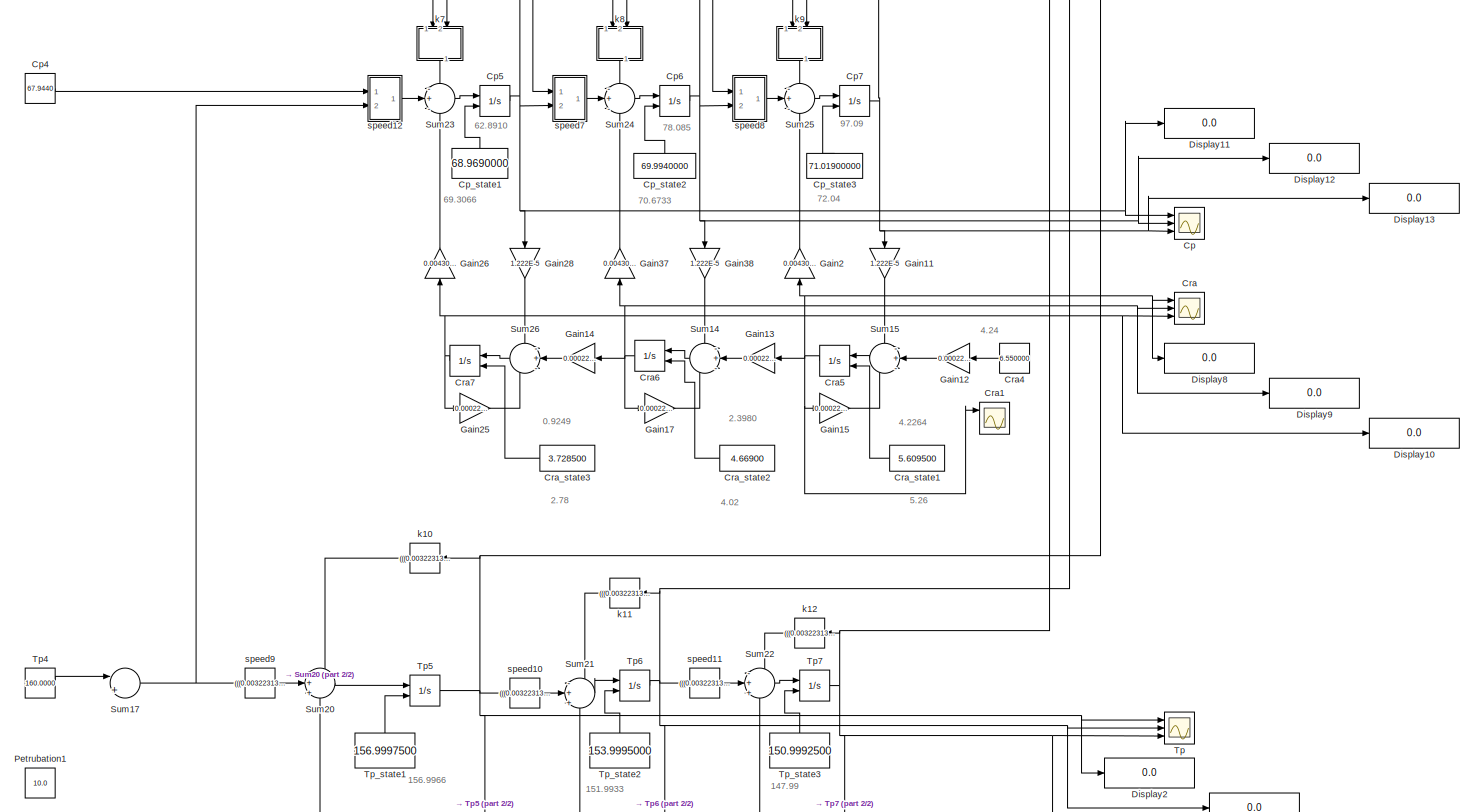
[diagram: root canvas - part 1/2, full width, middle band]
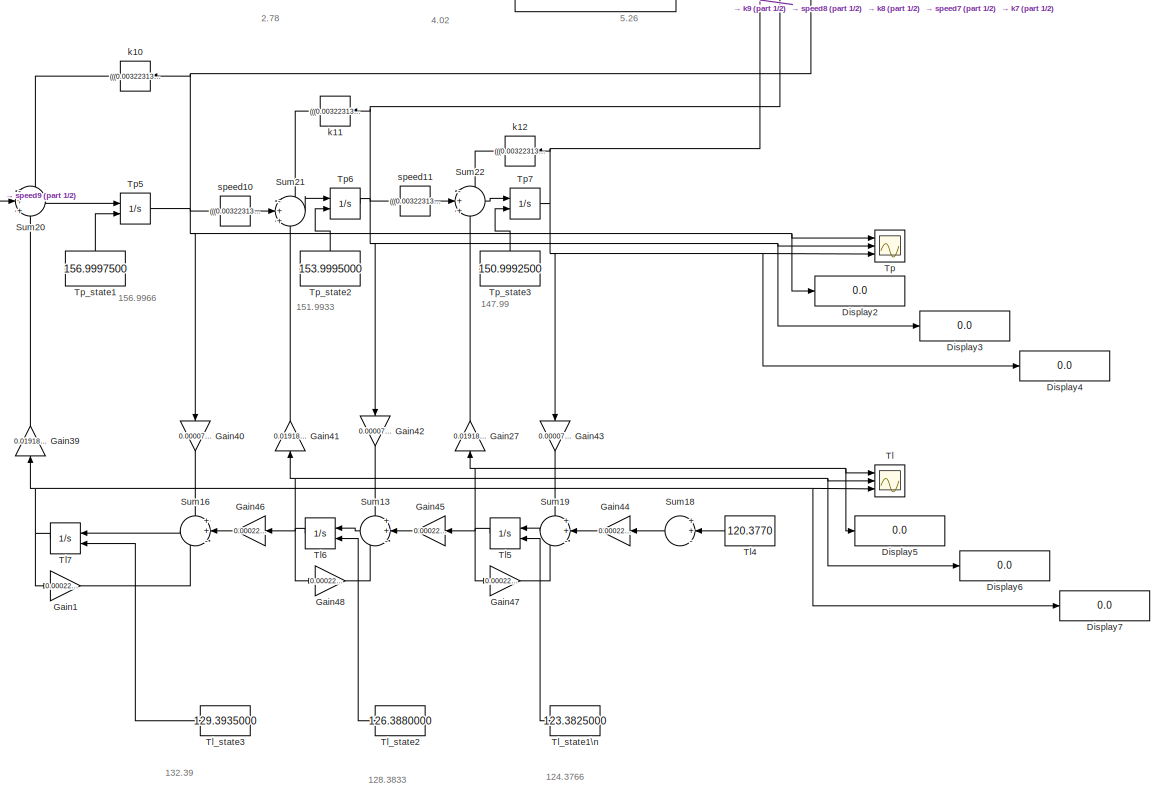
[diagram: root canvas - part 2/2, full width, bottom band]
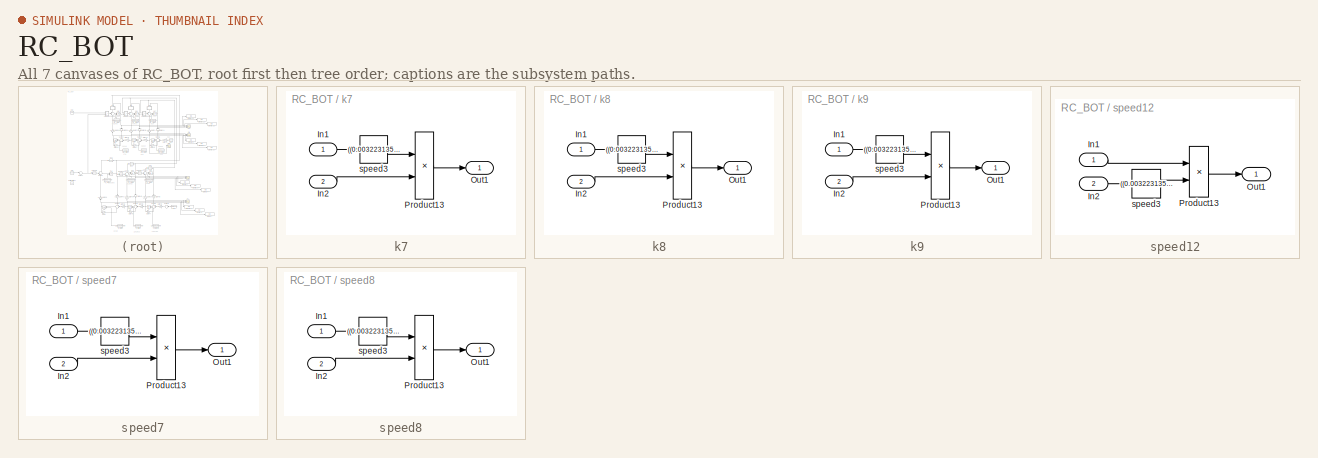
[diagram: thumbnail index - all 7 canvases of the model, root first then tree order]
MODEL RC_BOT
KIND model
BLOCK [Scope] Cp
  Floating = off
  NumInputPorts = 3
  Ports = [3]
  SID = 1
  ScopeSpecificationString = C++SS(StrPVP('Location','[5, 49, 1371, 737]'),StrPVP('Open','off'),StrPVP('TickLabels','on'),StrPVP('ZoomMode','xonly'),MxPVP('AxesTitles',53,'struct(''axes1'',''%<SignalLabel>'',''axes2'',''%<SignalLabel>'',''axes3'',''%<SignalLabel>'')'),MxPVP('ScopeGraphics',56,'struct(''FigureColor'',''[1 1 1]'',''AxesColor'',''[1 1 1]'',''AxesTickColor'',''[0 0 0]'',''LineColors'',''[0 0 0;1 0 1;0 1 1;1 0 0;0...<+445ch>
BLOCK [Constant] Cp4
  SID = 2
  Value = 67.9440
BLOCK [Integrator] Cp5
  InitialCondition = 69.3066
  InitialConditionSource = external
  Ports = [2, 1]
  SID = 3
BLOCK [Integrator] Cp6
  InitialCondition = 70.6733
  InitialConditionSource = external
  Ports = [2, 1]
  SID = 4
BLOCK [Integrator] Cp7
  InitialCondition = 72.04
  InitialConditionSource = external
  Ports = [2, 1]
  SID = 5
BLOCK [Constant] Cp_state1
  SID = 6
  Value = 68.9690000
BLOCK [Constant] Cp_state2
  SID = 7
  Value = 69.9940000
BLOCK [Constant] Cp_state3
  SID = 8
  Value = 71.01900000
BLOCK [Scope] Cra
  Floating = off
  NumInputPorts = 3
  Ports = [3]
  SID = 9
  ScopeSpecificationString = C++SS(StrPVP('Location','[5, 49, 1371, 737]'),StrPVP('Open','off'),StrPVP('TickLabels','on'),StrPVP('ZoomMode','xonly'),MxPVP('AxesTitles',53,'struct(''axes1'',''%<SignalLabel>'',''axes2'',''%<SignalLabel>'',''axes3'',''%<SignalLabel>'')'),MxPVP('ScopeGraphics',56,'struct(''FigureColor'',''[1 1 1]'',''AxesColor'',''[1 1 1]'',''AxesTickColor'',''[0 0 0]'',''LineColors'',''[0 0 0;1 0 1;0 1 1;1 0 0;0...<+458ch>
BLOCK [Scope] Cra1
  Floating = off
  NumInputPorts = 3
  Ports = [3]
  SID = 154
  ScopeSpecificationString = C++SS(StrPVP('Location','[5, 49, 1371, 737]'),StrPVP('Open','off'),StrPVP('TickLabels','on'),StrPVP('ZoomMode','xonly'),MxPVP('AxesTitles',53,'struct(''axes1'',''%<SignalLabel>'',''axes2'',''%<SignalLabel>'',''axes3'',''%<SignalLabel>'')'),MxPVP('ScopeGraphics',56,'struct(''FigureColor'',''[1 1 1]'',''AxesColor'',''[1 1 1]'',''AxesTickColor'',''[0 0 0]'',''LineColors'',''[0 0 0;1 0 1;0 1 1;1 0 0;0...<+459ch>
BLOCK [Constant] Cra4
  SID = 10
  Value = 6.550000
BLOCK [Integrator] Cra5
  InitialCondition = 5.26
  InitialConditionSource = external
  Ports = [2, 1]
  SID = 11
BLOCK [Integrator] Cra6
  InitialCondition = 4.02
  InitialConditionSource = external
  Ports = [2, 1]
  SID = 12
BLOCK [Integrator] Cra7
  InitialCondition = 2.78
  InitialConditionSource = external
  Ports = [2, 1]
  SID = 13
BLOCK [Constant] Cra_state1
  SID = 14
  Value = 5.609500
BLOCK [Constant] Cra_state2
  SID = 15
  Value = 4.66900
BLOCK [Constant] Cra_state3
  SID = 16
  Value = 3.728500
BLOCK [Display] Display10
  Decimation = 1
  Ports = [1]
  SID = 17
BLOCK [Display] Display11
  Decimation = 1
  Ports = [1]
  SID = 18
BLOCK [Display] Display12
  Decimation = 1
  Ports = [1]
  SID = 19
BLOCK [Display] Display13
  Decimation = 1
  Ports = [1]
  SID = 20
BLOCK [Display] Display2
  Decimation = 1
  Ports = [1]
  SID = 21
BLOCK [Display] Display3
  Decimation = 1
  Ports = [1]
  SID = 22
BLOCK [Display] Display4
  Decimation = 1
  Ports = [1]
  SID = 23
BLOCK [Display] Display5
  Decimation = 1
  Ports = [1]
  SID = 24
BLOCK [Display] Display6
  Decimation = 1
  Ports = [1]
  SID = 25
BLOCK [Display] Display7
  Decimation = 1
  Ports = [1]
  SID = 26
BLOCK [Display] Display8
  Decimation = 1
  Ports = [1]
  SID = 27
BLOCK [Display] Display9
  Decimation = 1
  Ports = [1]
  SID = 28
BLOCK [Gain] Gain1
  Gain = 0.0002291314/0.5+0.0000777
  OutDataTypeStr = Inherit: Inherit via internal rule
  ParamDataTypeStr = Inherit: Inherit via internal rule
  SID = 29
  SaturateOnIntegerOverflow = off
BLOCK [Gain] Gain11
  Gain = 1.222E-5
  OutDataTypeStr = Inherit: Inherit via internal rule
  ParamDataTypeStr = Inherit: Inherit via internal rule
  SID = 30
  SaturateOnIntegerOverflow = off
BLOCK [Gain] Gain12
  Gain = 0.0002291314/0.5
  OutDataTypeStr = Inherit: Inherit via internal rule
  ParamDataTypeStr = Inherit: Inherit via internal rule
  SID = 31
  SaturateOnIntegerOverflow = off
BLOCK [Gain] Gain13
  Gain = 0.0002291314/0.5
  OutDataTypeStr = Inherit: Inherit via internal rule
  ParamDataTypeStr = Inherit: Inherit via internal rule
  SID = 32
  SaturateOnIntegerOverflow = off
BLOCK [Gain] Gain14
  Gain = 0.0002291314/0.5
  OutDataTypeStr = Inherit: Inherit via internal rule
  ParamDataTypeStr = Inherit: Inherit via internal rule
  SID = 33
  SaturateOnIntegerOverflow = off
BLOCK [Gain] Gain15
  Gain = 0.0002291314/0.5-(1.222E-5)*10^(-9)
  OutDataTypeStr = Inherit: Inherit via internal rule
  ParamDataTypeStr = Inherit: Inherit via internal rule
  SID = 34
  SaturateOnIntegerOverflow = off
BLOCK [Gain] Gain17
  Gain = 0.0002291314/0.5-(1.222E-5)*10^(-9)
  OutDataTypeStr = Inherit: Inherit via internal rule
  ParamDataTypeStr = Inherit: Inherit via internal rule
  SID = 35
  SaturateOnIntegerOverflow = off
BLOCK [Gain] Gain2
  Gain = 0.004302*10^(-9)
  OutDataTypeStr = Inherit: Inherit via internal rule
  ParamDataTypeStr = Inherit: Inherit via internal rule
  SID = 36
  SaturateOnIntegerOverflow = off
BLOCK [Gain] Gain25
  Gain = 0.0002291314/0.5-(1.222E-5)*10^(-9)
  OutDataTypeStr = Inherit: Inherit via internal rule
  ParamDataTypeStr = Inherit: Inherit via internal rule
  SID = 37
  SaturateOnIntegerOverflow = off
BLOCK [Gain] Gain26
  Gain = 0.004302*10^(-9)
  OutDataTypeStr = Inherit: Inherit via internal rule
  ParamDataTypeStr = Inherit: Inherit via internal rule
  SID = 38
  SaturateOnIntegerOverflow = off
BLOCK [Gain] Gain27
  Gain = 0.0191806
  OutDataTypeStr = Inherit: Inherit via internal rule
  ParamDataTypeStr = Inherit: Inherit via internal rule
  SID = 39
  SaturateOnIntegerOverflow = off
BLOCK [Gain] Gain28
  Gain = 1.222E-5
  OutDataTypeStr = Inherit: Inherit via internal rule
  ParamDataTypeStr = Inherit: Inherit via internal rule
  SID = 40
  SaturateOnIntegerOverflow = off
BLOCK [Gain] Gain37
  Gain = 0.004302*10^(-9)
  OutDataTypeStr = Inherit: Inherit via internal rule
  ParamDataTypeStr = Inherit: Inherit via internal rule
  SID = 41
  SaturateOnIntegerOverflow = off
BLOCK [Gain] Gain38
  Gain = 1.222E-5
  OutDataTypeStr = Inherit: Inherit via internal rule
  ParamDataTypeStr = Inherit: Inherit via internal rule
  SID = 42
  SaturateOnIntegerOverflow = off
BLOCK [Gain] Gain39
  Gain = 0.0191806
  OutDataTypeStr = Inherit: Inherit via internal rule
  ParamDataTypeStr = Inherit: Inherit via internal rule
  SID = 43
  SaturateOnIntegerOverflow = off
BLOCK [Gain] Gain40
  Gain = 0.0000777
  OutDataTypeStr = Inherit: Inherit via internal rule
  ParamDataTypeStr = Inherit: Inherit via internal rule
  SID = 44
  SaturateOnIntegerOverflow = off
BLOCK [Gain] Gain41
  Gain = 0.0191806
  OutDataTypeStr = Inherit: Inherit via internal rule
  ParamDataTypeStr = Inherit: Inherit via internal rule
  SID = 45
  SaturateOnIntegerOverflow = off
BLOCK [Gain] Gain42
  Gain = 0.0000777
  OutDataTypeStr = Inherit: Inherit via internal rule
  ParamDataTypeStr = Inherit: Inherit via internal rule
  SID = 46
  SaturateOnIntegerOverflow = off
BLOCK [Gain] Gain43
  Gain = 0.0000777
  OutDataTypeStr = Inherit: Inherit via internal rule
  ParamDataTypeStr = Inherit: Inherit via internal rule
  SID = 47
  SaturateOnIntegerOverflow = off
BLOCK [Gain] Gain44
  Gain = 0.0002291314/0.5
  OutDataTypeStr = Inherit: Inherit via internal rule
  ParamDataTypeStr = Inherit: Inherit via internal rule
  SID = 48
  SaturateOnIntegerOverflow = off
BLOCK [Gain] Gain45
  Gain = 0.0002291314/0.5
  OutDataTypeStr = Inherit: Inherit via internal rule
  ParamDataTypeStr = Inherit: Inherit via internal rule
  SID = 49
  SaturateOnIntegerOverflow = off
BLOCK [Gain] Gain46
  Gain = 0.0002291314/0.5
  OutDataTypeStr = Inherit: Inherit via internal rule
  ParamDataTypeStr = Inherit: Inherit via internal rule
  SID = 50
  SaturateOnIntegerOverflow = off
BLOCK [Gain] Gain47
  Gain = 0.0002291314/0.5+0.0000777
  OutDataTypeStr = Inherit: Inherit via internal rule
  ParamDataTypeStr = Inherit: Inherit via internal rule
  SID = 51
  SaturateOnIntegerOverflow = off
BLOCK [Gain] Gain48
  Gain = 0.0002291314/0.5+0.0000777
  OutDataTypeStr = Inherit: Inherit via internal rule
  ParamDataTypeStr = Inherit: Inherit via internal rule
  SID = 52
  SaturateOnIntegerOverflow = off
BLOCK [Constant] Petrubation1
  SID = 53
  Value = 10.0
BLOCK [Sum] Sum13
  IconShape = round
  InputSameDT = off
  Inputs = ++-
  OutDataTypeStr = Inherit: Inherit via internal rule
  Ports = [3, 1]
  SID = 54
  SaturateOnIntegerOverflow = off
BLOCK [Sum] Sum14
  IconShape = round
  InputSameDT = off
  Inputs = -+-
  OutDataTypeStr = Inherit: Inherit via internal rule
  Ports = [3, 1]
  SID = 55
  SaturateOnIntegerOverflow = off
BLOCK [Sum] Sum15
  IconShape = round
  InputSameDT = off
  Inputs = -+-
  OutDataTypeStr = Inherit: Inherit via internal rule
  Ports = [3, 1]
  SID = 56
  SaturateOnIntegerOverflow = off
BLOCK [Sum] Sum16
  IconShape = round
  InputSameDT = off
  Inputs = ++-
  OutDataTypeStr = Inherit: Inherit via internal rule
  Ports = [3, 1]
  SID = 57
  SaturateOnIntegerOverflow = off
BLOCK [Sum] Sum17
  IconShape = round
  InputSameDT = off
  Inputs = |++
  OutDataTypeStr = Inherit: Inherit via internal rule
  Ports = [2, 1]
  SID = 58
  SaturateOnIntegerOverflow = off
BLOCK [Sum] Sum18
  IconShape = round
  InputSameDT = off
  Inputs = ++-
  OutDataTypeStr = Inherit: Inherit via internal rule
  Ports = [3, 1]
  SID = 59
  SaturateOnIntegerOverflow = off
BLOCK [Sum] Sum19
  IconShape = round
  InputSameDT = off
  Inputs = ++-
  OutDataTypeStr = Inherit: Inherit via internal rule
  Ports = [3, 1]
  SID = 60
  SaturateOnIntegerOverflow = off
BLOCK [Sum] Sum20
  IconShape = round
  InputSameDT = off
  Inputs = -++
  OutDataTypeStr = Inherit: Inherit via internal rule
  Ports = [3, 1]
  SID = 61
  SaturateOnIntegerOverflow = off
BLOCK [Sum] Sum21
  IconShape = round
  InputSameDT = off
  Inputs = -++
  OutDataTypeStr = Inherit: Inherit via internal rule
  Ports = [3, 1]
  SID = 62
  SaturateOnIntegerOverflow = off
BLOCK [Sum] Sum22
  IconShape = round
  InputSameDT = off
  Inputs = -++
  OutDataTypeStr = Inherit: Inherit via internal rule
  Ports = [3, 1]
  SID = 63
  SaturateOnIntegerOverflow = off
BLOCK [Sum] Sum23
  IconShape = round
  InputSameDT = off
  Inputs = -+-
  OutDataTypeStr = Inherit: Inherit via internal rule
  Ports = [3, 1]
  SID = 64
  SaturateOnIntegerOverflow = off
BLOCK [Sum] Sum24
  IconShape = round
  InputSameDT = off
  Inputs = -+-
  OutDataTypeStr = Inherit: Inherit via internal rule
  Ports = [3, 1]
  SID = 65
  SaturateOnIntegerOverflow = off
BLOCK [Sum] Sum25
  IconShape = round
  InputSameDT = off
  Inputs = -+-
  OutDataTypeStr = Inherit: Inherit via internal rule
  Ports = [3, 1]
  SID = 66
  SaturateOnIntegerOverflow = off
BLOCK [Sum] Sum26
  IconShape = round
  InputSameDT = off
  Inputs = -+-
  OutDataTypeStr = Inherit: Inherit via internal rule
  Ports = [3, 1]
  SID = 67
  SaturateOnIntegerOverflow = off
BLOCK [Scope] Tl
  Floating = off
  NumInputPorts = 3
  Ports = [3]
  SID = 68
  ScopeSpecificationString = C++SS(StrPVP('Location','[5, 49, 1371, 737]'),StrPVP('Open','off'),StrPVP('TickLabels','on'),StrPVP('ZoomMode','xonly'),MxPVP('AxesTitles',53,'struct(''axes1'',''%<SignalLabel>'',''axes2'',''%<SignalLabel>'',''axes3'',''%<SignalLabel>'')'),MxPVP('ScopeGraphics',56,'struct(''FigureColor'',''[1 1 1]'',''AxesColor'',''[1 1 1]'',''AxesTickColor'',''[0 0 0]'',''LineColors'',''[0 0 0;1 0 1;0 1 1;1 0 0;0...<+471ch>
BLOCK [Constant] Tl4
  SID = 69
  Value = 120.3770
BLOCK [Integrator] Tl5
  InitialCondition = 124.3766
  InitialConditionSource = external
  Ports = [2, 1]
  SID = 70
BLOCK [Integrator] Tl6
  InitialCondition = 128.3833
  InitialConditionSource = external
  Ports = [2, 1]
  SID = 71
BLOCK [Integrator] Tl7
  InitialCondition = 132.39
  InitialConditionSource = external
  Ports = [2, 1]
  SID = 72
BLOCK [Constant] Tl_state1\n
  SID = 73
  Value = 123.3825000
BLOCK [Constant] Tl_state2
  SID = 74
  Value = 126.3880000
BLOCK [Constant] Tl_state3
  SID = 75
  Value = 129.3935000
BLOCK [Scope] Tp
  Floating = off
  NumInputPorts = 3
  Ports = [3]
  SID = 76
  ScopeSpecificationString = C++SS(StrPVP('Location','[5, 49, 1371, 737]'),StrPVP('Open','off'),StrPVP('TickLabels','on'),StrPVP('ZoomMode','xonly'),MxPVP('AxesTitles',53,'struct(''axes1'',''%<SignalLabel>'',''axes2'',''%<SignalLabel>'',''axes3'',''%<SignalLabel>'')'),MxPVP('ScopeGraphics',56,'struct(''FigureColor'',''[1 1 1]'',''AxesColor'',''[1 1 1]'',''AxesTickColor'',''[0 0 0]'',''LineColors'',''[0 0 0;1 0 1;0 1 1;1 0 0;0...<+463ch>
BLOCK [Constant] Tp4
  SID = 77
  Value = 160.0000
BLOCK [Integrator] Tp5
  InitialCondition = 156.9966
  InitialConditionSource = external
  Ports = [2, 1]
  SID = 78
BLOCK [Integrator] Tp6
  InitialCondition = 151.9933
  InitialConditionSource = external
  Ports = [2, 1]
  SID = 79
BLOCK [Integrator] Tp7
  IgnoreLimit = on
  InitialCondition = 147.99
  InitialConditionSource = external
  Ports = [2, 1]
  SID = 80
BLOCK [Constant] Tp_state1
  SID = 81
  Value = 156.9997500
BLOCK [Constant] Tp_state2
  SID = 82
  Value = 153.9995000
BLOCK [Constant] Tp_state3
  SID = 83
  Value = 150.9992500
BLOCK [Fcn] k10
  Expr = (((0.003223135*(273+u))/24.69822264)/0.5+0.0191806)*u
  SID = 84
BLOCK [Fcn] k11
  Expr = (((0.003223135*(273+u))/24.69822264)/0.5+0.0191806)*u
  SID = 85
BLOCK [Fcn] k12
  Expr = (((0.003223135*(273+u))/24.69822264)/0.5+0.0191806)*u
  SID = 86
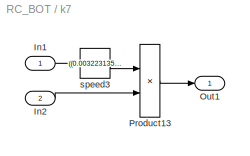
BLOCK [SubSystem] k7
  Ports = [2, 1]
  RequestExecContextInheritance = off
  SID = 87
BLOCK [Inport] k7/In1
  IconDisplay = Port number
  SID = 88
BLOCK [Inport] k7/In2
  IconDisplay = Port number
  Port = 2
  SID = 89
BLOCK [Outport] k7/Out1
  IconDisplay = Port number
  SID = 92
BLOCK [Product] k7/Product13
  Ports = [2, 1]
  RndMeth = Floor
  SID = 90
BLOCK [Fcn] k7/speed3
  Expr = ((0.003223135*(273+u))/24.69822264)/0.5-0.004302
  SID = 91
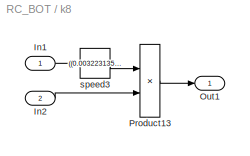
BLOCK [SubSystem] k8
  Ports = [2, 1]
  RequestExecContextInheritance = off
  SID = 93
BLOCK [Inport] k8/In1
  IconDisplay = Port number
  SID = 94
BLOCK [Inport] k8/In2
  IconDisplay = Port number
  Port = 2
  SID = 95
BLOCK [Outport] k8/Out1
  IconDisplay = Port number
  SID = 98
BLOCK [Product] k8/Product13
  Ports = [2, 1]
  RndMeth = Floor
  SID = 96
BLOCK [Fcn] k8/speed3
  Expr = ((0.003223135*(273+u))/24.69822264)/0.5-0.004302
  SID = 97
BLOCK [SubSystem] k9
  Ports = [2, 1]
  RequestExecContextInheritance = off
  SID = 99
BLOCK [Inport] k9/In1
  IconDisplay = Port number
  SID = 100
BLOCK [Inport] k9/In2
  IconDisplay = Port number
  Port = 2
  SID = 101
BLOCK [Outport] k9/Out1
  IconDisplay = Port number
  SID = 104
BLOCK [Product] k9/Product13
  Ports = [2, 1]
  RndMeth = Floor
  SID = 102
BLOCK [Fcn] k9/speed3
  Expr = ((0.003223135*(273+u))/24.69822264)/0.5-0.004302
  SID = 103
BLOCK [Fcn] speed10
  Expr = (((0.003223135*(273+u))/24.69822264)/0.5)*u
  SID = 105
BLOCK [Fcn] speed11
  Expr = (((0.003223135*(273+u))/24.69822264)/0.5)*u
  SID = 106
BLOCK [SubSystem] speed12
  Ports = [2, 1]
  RequestExecContextInheritance = off
  SID = 107
BLOCK [Inport] speed12/In1
  IconDisplay = Port number
  SID = 108
BLOCK [Inport] speed12/In2
  IconDisplay = Port number
  Port = 2
  SID = 109
BLOCK [Outport] speed12/Out1
  IconDisplay = Port number
  SID = 112
BLOCK [Product] speed12/Product13
  Ports = [2, 1]
  RndMeth = Floor
  SID = 110
BLOCK [Fcn] speed12/speed3
  Expr = ((0.003223135*(273+u))/24.69822264)/0.5
  SID = 111
BLOCK [SubSystem] speed7
  Ports = [2, 1]
  RequestExecContextInheritance = off
  SID = 113
BLOCK [Inport] speed7/In1
  IconDisplay = Port number
  SID = 114
BLOCK [Inport] speed7/In2
  IconDisplay = Port number
  Port = 2
  SID = 115
BLOCK [Outport] speed7/Out1
  IconDisplay = Port number
  SID = 118
BLOCK [Product] speed7/Product13
  Ports = [2, 1]
  RndMeth = Floor
  SID = 116
BLOCK [Fcn] speed7/speed3
  Expr = ((0.003223135*(273+u))/24.69822264)/0.5
  SID = 117
BLOCK [SubSystem] speed8
  Ports = [2, 1]
  RequestExecContextInheritance = off
  SID = 119
BLOCK [Inport] speed8/In1
  IconDisplay = Port number
  SID = 120
BLOCK [Inport] speed8/In2
  IconDisplay = Port number
  Port = 2
  SID = 121
BLOCK [Outport] speed8/Out1
  IconDisplay = Port number
  SID = 124
BLOCK [Product] speed8/Product13
  Ports = [2, 1]
  RndMeth = Floor
  SID = 122
BLOCK [Fcn] speed8/speed3
  Expr = ((0.003223135*(273+u))/24.69822264)/0.5
  SID = 123
BLOCK [Fcn] speed9
  Expr = (((0.003223135*(273+u))/24.69822264)/0.5)*u
  SID = 125
ANNOTATION (root): 0.9249
ANNOTATION (root): 124.3766
ANNOTATION (root): 128.3833
ANNOTATION (root): 132.39
ANNOTATION (root): 147.99
ANNOTATION (root): 151.9933
ANNOTATION (root): 156.9966
ANNOTATION (root): 2.3980
ANNOTATION (root): 2.78
ANNOTATION (root): 4.02
ANNOTATION (root): 4.2264
ANNOTATION (root): 4.24
ANNOTATION (root): 5.26
ANNOTATION (root): 62.8910
ANNOTATION (root): 69.3066
ANNOTATION (root): 70.6733
ANNOTATION (root): 72.04
ANNOTATION (root): 78.085
ANNOTATION (root): 97.09
LINE Cp4:1 -> speed12:1
NET Cp5:1 -> Cp:1, Display11:1, Gain28:1, k7:2, speed7:2
NET Cp6:1 -> Cp:2, Display12:1, Gain38:1, k8:2, speed8:2
NET Cp7:1 -> Cp:3, Display13:1, Gain11:1, k9:2
LINE Cp_state1:1 -> Cp5:2
LINE Cp_state2:1 -> Cp6:2
LINE Cp_state3:1 -> Cp7:2
LINE Cra4:1 -> Gain12:1
NET Cra5:1 -> Cra1:1, Cra:1, Display8:1, Gain13:1, Gain15:1, Gain2:1
NET Cra6:1 -> Cra:2, Display9:1, Gain14:1, Gain17:1, Gain37:1
NET Cra7:1 -> Cra:3, Display10:1, Gain25:1, Gain26:1
LINE Cra_state1:1 -> Cra5:2
LINE Cra_state2:1 -> Cra6:2
LINE Cra_state3:1 -> Cra7:2
LINE Gain11:1 -> Sum15:1
LINE Gain12:1 -> Sum15:2
LINE Gain13:1 -> Sum14:2
LINE Gain14:1 -> Sum26:2
LINE Gain15:1 -> Sum15:3
LINE Gain17:1 -> Sum14:3
LINE Gain1:1 -> Sum16:3
LINE Gain25:1 -> Sum26:3
LINE Gain26:1 -> Sum23:3
LINE Gain27:1 -> Sum22:3
LINE Gain28:1 -> Sum26:1
LINE Gain2:1 -> Sum25:3
LINE Gain37:1 -> Sum24:3
LINE Gain38:1 -> Sum14:1
LINE Gain39:1 -> Sum20:3
LINE Gain40:1 -> Sum16:1
LINE Gain41:1 -> Sum21:3
LINE Gain42:1 -> Sum13:1
LINE Gain43:1 -> Sum19:1
LINE Gain44:1 -> Sum19:2
LINE Gain45:1 -> Sum13:2
LINE Gain46:1 -> Sum16:2
LINE Gain47:1 -> Sum19:3
LINE Gain48:1 -> Sum13:3
LINE Sum13:1 -> Tl6:1
LINE Sum14:1 -> Cra6:1
LINE Sum15:1 -> Cra5:1
LINE Sum16:1 -> Tl7:1
NET Sum17:1 -> speed12:2, speed9:1
LINE Sum18:1 -> Gain44:1
LINE Sum19:1 -> Tl5:1
LINE Sum20:1 -> Tp5:1
LINE Sum21:1 -> Tp6:1
LINE Sum22:1 -> Tp7:1
LINE Sum23:1 -> Cp5:1
LINE Sum24:1 -> Cp6:1
LINE Sum25:1 -> Cp7:1
LINE Sum26:1 -> Cra7:1
LINE Tl4:1 -> Sum18:2
NET Tl5:1 -> Display5:1, Gain27:1, Gain45:1, Gain47:1, Tl:1
NET Tl6:1 -> Display6:1, Gain41:1, Gain46:1, Gain48:1, Tl:2
NET Tl7:1 -> Display7:1, Gain1:1, Gain39:1, Tl:3
LINE Tl_state1\n:1 -> Tl5:2
LINE Tl_state2:1 -> Tl6:2
LINE Tl_state3:1 -> Tl7:2
LINE Tp4:1 -> Sum17:1
NET Tp5:1 -> Display2:1, Gain40:1, Tp:1, k10:1, k7:1, speed10:1
NET Tp6:1 -> Display3:1, Gain42:1, Tp:2, k11:1, k8:1, speed11:1, speed7:1
NET Tp7:1 -> Display4:1, Gain43:1, Tp:3, k12:1, k9:1, speed8:1
LINE Tp_state1:1 -> Tp5:2
LINE Tp_state2:1 -> Tp6:2
LINE Tp_state3:1 -> Tp7:2
LINE k10:1 -> Sum20:1
LINE k11:1 -> Sum21:1
LINE k12:1 -> Sum22:1
LINE k7/In1:1 -> k7/speed3:1
LINE k7/In2:1 -> k7/Product13:2
LINE k7/Product13:1 -> k7/Out1:1
LINE k7/speed3:1 -> k7/Product13:1
LINE k7:1 -> Sum23:1
LINE k8/In1:1 -> k8/speed3:1
LINE k8/In2:1 -> k8/Product13:2
LINE k8/Product13:1 -> k8/Out1:1
LINE k8/speed3:1 -> k8/Product13:1
LINE k8:1 -> Sum24:1
LINE k9/In1:1 -> k9/speed3:1
LINE k9/In2:1 -> k9/Product13:2
LINE k9/Product13:1 -> k9/Out1:1
LINE k9/speed3:1 -> k9/Product13:1
LINE k9:1 -> Sum25:1
LINE speed10:1 -> Sum21:2
LINE speed11:1 -> Sum22:2
LINE speed12/In1:1 -> speed12/Product13:1
LINE speed12/In2:1 -> speed12/speed3:1
LINE speed12/Product13:1 -> speed12/Out1:1
LINE speed12/speed3:1 -> speed12/Product13:2
LINE speed12:1 -> Sum23:2
LINE speed7/In1:1 -> speed7/speed3:1
LINE speed7/In2:1 -> speed7/Product13:2
LINE speed7/Product13:1 -> speed7/Out1:1
LINE speed7/speed3:1 -> speed7/Product13:1
LINE speed7:1 -> Sum24:2
LINE speed8/In1:1 -> speed8/speed3:1
LINE speed8/In2:1 -> speed8/Product13:2
LINE speed8/Product13:1 -> speed8/Out1:1
LINE speed8/speed3:1 -> speed8/Product13:1
LINE speed8:1 -> Sum25:2
LINE speed9:1 -> Sum20:2
note: NET lines group one-source signal fan-out (src -> all destinations, sorted); 1:1 wires keep LINE
